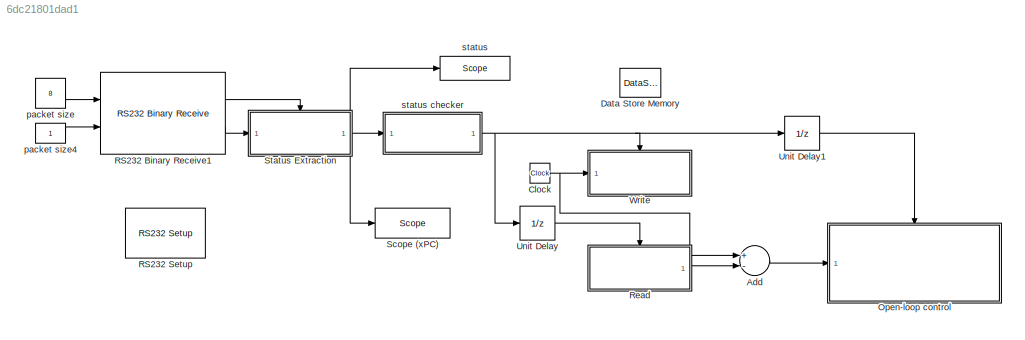
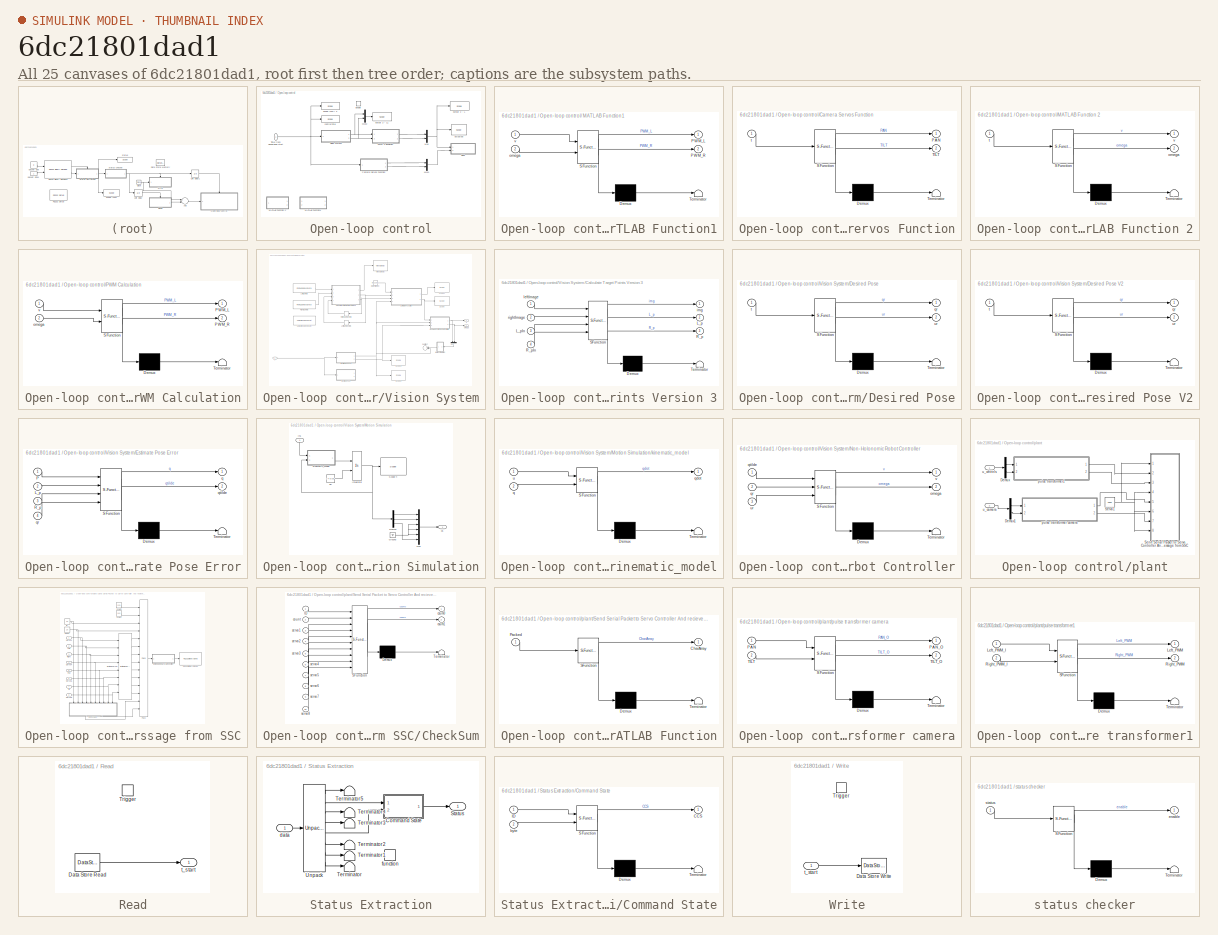
[diagram: thumbnail index - all 25 canvases of the model, root first then tree order]
MODEL slx_6dc21801dad1
KIND model
CONFIG AbsTol = auto
CONFIG FixedStep = 1/7.5
CONFIG MaxStep = auto
CONFIG MinStep = auto
CONFIG RelTol = 1e-3
CONFIG SampleTimeConstraint = Unconstrained
CONFIG Solver = ode3
CONFIG SolverMode = Auto
CONFIG SolverName = ode3
CONFIG StartTime = 0.0
CONFIG StopTime = inf
BLOCK [Sum] Add
  InputSameDT = off
  Inputs = +-
  OutDataTypeStr = Inherit: Inherit via internal rule
  Ports = [2, 1]
  SaturateOnIntegerOverflow = off
BLOCK [Clock] Clock
BLOCK [DataStoreMemory] Data Store Memory
  DataStoreName = t_start
  ReadBeforeWriteMsg = warning
  WriteAfterReadMsg = warning
  WriteAfterWriteMsg = warning
BLOCK [SubSystem] Open-loop control
  Ports = [1, 0, 1]
  RequestExecContextInheritance = off
BLOCK [SubSystem] Open-loop control/ MATLAB Function1
  Commented = on
  ErrorFcn = Stateflow.Translate.translate
  PermitHierarchicalResolution = ExplicitOnly
  Ports = [2, 2]
  RequestExecContextInheritance = off
  SFBlockType = MATLAB Function
  TreatAsAtomicUnit = on
BLOCK [Demux] Open-loop control/ MATLAB Function1/ Demux 
  Outputs = 1
  Ports = [1, 1]
BLOCK [S-Function] Open-loop control/ MATLAB Function1/ SFunction 
  EnableBusSupport = on
  FunctionName = sf_sfun
  PortCounts = [2 3]
  Ports = [2, 3]
  Tag = Stateflow S-Function RobotControl1 4
BLOCK [Terminator] Open-loop control/ MATLAB Function1/ Terminator 
BLOCK [Outport] Open-loop control/ MATLAB Function1/PWM_L
  IconDisplay = Port number
BLOCK [Outport] Open-loop control/ MATLAB Function1/PWM_R
  IconDisplay = Port number
  Port = 2
BLOCK [Inport] Open-loop control/ MATLAB Function1/omega
  IconDisplay = Port number
  Port = 2
BLOCK [Inport] Open-loop control/ MATLAB Function1/v
  IconDisplay = Port number
BLOCK [SubSystem] Open-loop control/Camera Servos Function
  ErrorFcn = Stateflow.Translate.translate
  PermitHierarchicalResolution = ExplicitOnly
  Ports = [1, 2]
  RequestExecContextInheritance = off
  SFBlockType = MATLAB Function
  TreatAsAtomicUnit = on
BLOCK [Demux] Open-loop control/Camera Servos Function/ Demux 
  Outputs = 1
  Ports = [1, 1]
BLOCK [S-Function] Open-loop control/Camera Servos Function/ SFunction 
  EnableBusSupport = on
  FunctionName = sf_sfun
  PortCounts = [1 3]
  Ports = [1, 3]
  Tag = Stateflow S-Function RobotControl1 11
BLOCK [Terminator] Open-loop control/Camera Servos Function/ Terminator 
BLOCK [Outport] Open-loop control/Camera Servos Function/PAN
  IconDisplay = Port number
BLOCK [Outport] Open-loop control/Camera Servos Function/TILT
  IconDisplay = Port number
  Port = 2
BLOCK [Inport] Open-loop control/Camera Servos Function/t
  IconDisplay = Port number
BLOCK [EnablePort] Open-loop control/Enable
  Ports = []
  PropagateVarSize = During execution
BLOCK [SubSystem] Open-loop control/MATLAB Function 2
  Commented = on
  ErrorFcn = Stateflow.Translate.translate
  PermitHierarchicalResolution = ExplicitOnly
  Ports = [1, 2]
  RequestExecContextInheritance = off
  SFBlockType = MATLAB Function
  TreatAsAtomicUnit = on
BLOCK [Demux] Open-loop control/MATLAB Function 2/ Demux 
  Outputs = 1
  Ports = [1, 1]
BLOCK [S-Function] Open-loop control/MATLAB Function 2/ SFunction 
  EnableBusSupport = on
  FunctionName = sf_sfun
  PortCounts = [1 3]
  Ports = [1, 3]
  Tag = Stateflow S-Function RobotControl1 1
BLOCK [Terminator] Open-loop control/MATLAB Function 2/ Terminator 
BLOCK [Outport] Open-loop control/MATLAB Function 2/omega
  IconDisplay = Port number
  Port = 2
BLOCK [Inport] Open-loop control/MATLAB Function 2/t
  IconDisplay = Port number
BLOCK [Outport] Open-loop control/MATLAB Function 2/v
  IconDisplay = Port number
BLOCK [Mux] Open-loop control/Mux
  DisplayOption = bar
  Inputs = 2
  Ports = [2, 1]
BLOCK [Mux] Open-loop control/Mux1
  DisplayOption = bar
  Inputs = 2
  Ports = [2, 1]
BLOCK [Mux] Open-loop control/Mux2
  DisplayOption = bar
  Inputs = 2
  Ports = [2, 1]
BLOCK [SubSystem] Open-loop control/PWM Calculation
  ErrorFcn = Stateflow.Translate.translate
  PermitHierarchicalResolution = ExplicitOnly
  Ports = [2, 2]
  RequestExecContextInheritance = off
  SFBlockType = MATLAB Function
  TreatAsAtomicUnit = on
BLOCK [Demux] Open-loop control/PWM Calculation/ Demux 
  Outputs = 1
  Ports = [1, 1]
BLOCK [S-Function] Open-loop control/PWM Calculation/ SFunction 
  EnableBusSupport = on
  FunctionName = sf_sfun
  PortCounts = [2 3]
  Ports = [2, 3]
  Tag = Stateflow S-Function RobotControl1 10
BLOCK [Terminator] Open-loop control/PWM Calculation/ Terminator 
BLOCK [Outport] Open-loop control/PWM Calculation/PWM_L
  IconDisplay = Port number
BLOCK [Outport] Open-loop control/PWM Calculation/PWM_R
  IconDisplay = Port number
  Port = 2
BLOCK [Inport] Open-loop control/PWM Calculation/omega
  IconDisplay = Port number
  Port = 2
BLOCK [Inport] Open-loop control/PWM Calculation/v
  IconDisplay = Port number
BLOCK [Reference] Open-loop control/Scope (xPC) 2  REF=slrtlib/Displays and
Logging/Scope 
  Commented = on
  Ports = [1]
  SourceBlock = slrtlib/Displays and\nLogging/Scope
  SourceType = xpcscopeblock
  autorestart = off
  autostart = on
  dynamicfilemode = off
  filename = 1ctime01.dat
  formatstr = '%15.6f'
  grid = on
  interleave = 1
  maxwritefilesize = 512*1024^2
  mode = Commit
  noprepostsamples = 0
  nosamples = 3000
  scopeno = 1
  scopetype = File
  triggerlevel = 0.0
  triggermode = FreeRun
  triggersample = 0
  triggerscope = 1
  triggersignal = 1
  triggerslope = Either
  trigsignalfromport = off
  viewmode = Graphical redraw
  writesize = 512
  ylimits = [0,0]
BLOCK [Inport] Open-loop control/Time from closed-loop start
  IconDisplay = Port number
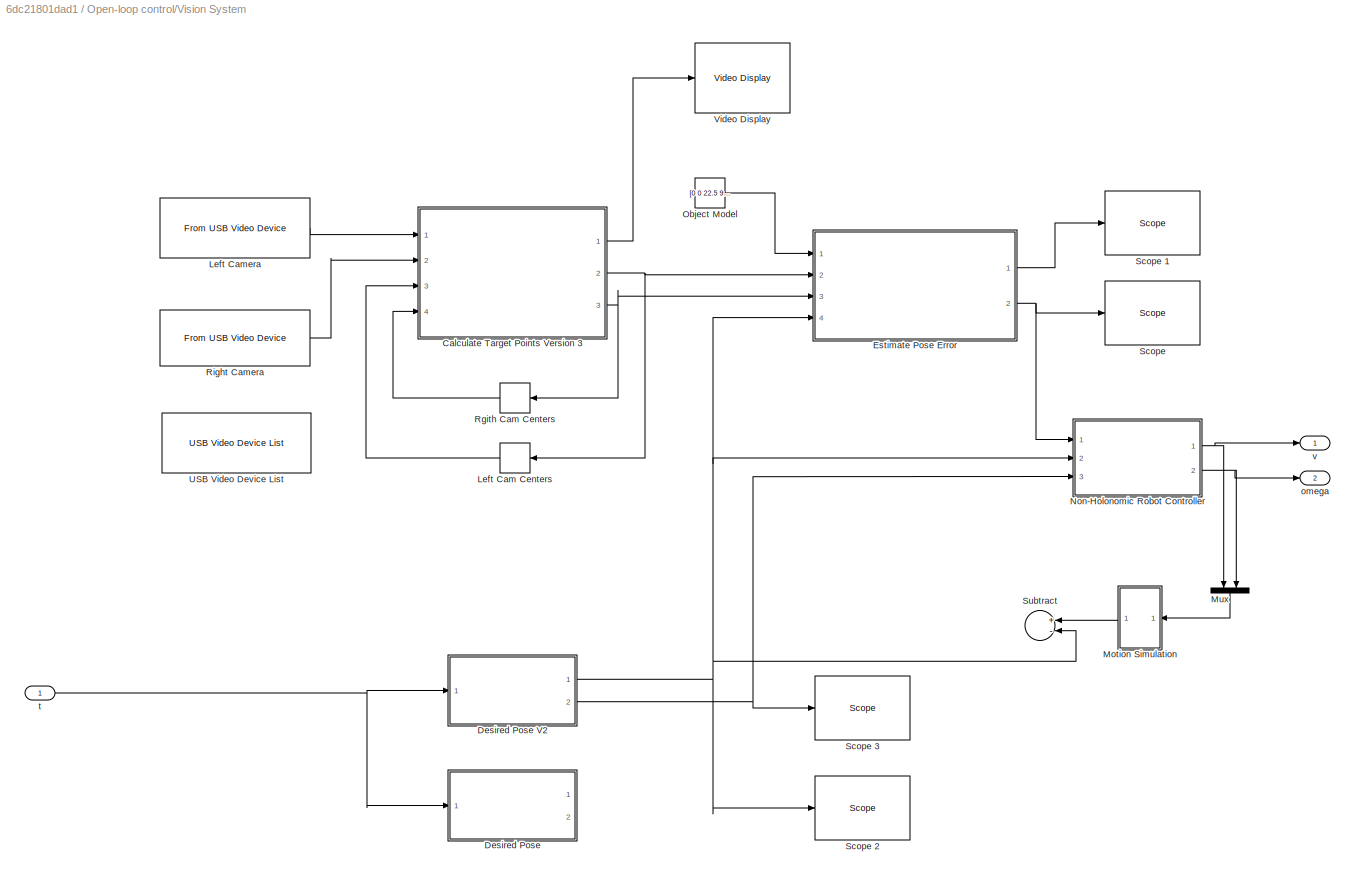
BLOCK [SubSystem] Open-loop control/Vision System
  Ports = [1, 2]
  RequestExecContextInheritance = off
BLOCK [SubSystem] Open-loop control/Vision System/Calculate Target Points Version 3
  ErrorFcn = Stateflow.Translate.translate
  PermitHierarchicalResolution = ExplicitOnly
  Ports = [4, 3]
  RequestExecContextInheritance = off
  SFBlockType = MATLAB Function
  TreatAsAtomicUnit = on
BLOCK [Demux] Open-loop control/Vision System/Calculate Target Points Version 3/ Demux 
  Outputs = 1
  Ports = [1, 1]
BLOCK [S-Function] Open-loop control/Vision System/Calculate Target Points Version 3/ SFunction 
  EnableBusSupport = on
  FunctionName = sf_sfun
  PortCounts = [4 4]
  Ports = [4, 4]
  Tag = Stateflow S-Function RobotControl1 6
BLOCK [Terminator] Open-loop control/Vision System/Calculate Target Points Version 3/ Terminator 
BLOCK [Outport] Open-loop control/Vision System/Calculate Target Points Version 3/L_p
  IconDisplay = Port number
  Port = 2
BLOCK [Inport] Open-loop control/Vision System/Calculate Target Points Version 3/L_pIn
  IconDisplay = Port number
  Port = 3
BLOCK [Outport] Open-loop control/Vision System/Calculate Target Points Version 3/R_p
  IconDisplay = Port number
  Port = 3
BLOCK [Inport] Open-loop control/Vision System/Calculate Target Points Version 3/R_pIn
  IconDisplay = Port number
  Port = 4
BLOCK [Outport] Open-loop control/Vision System/Calculate Target Points Version 3/img
  IconDisplay = Port number
BLOCK [Inport] Open-loop control/Vision System/Calculate Target Points Version 3/leftImage
  IconDisplay = Port number
BLOCK [Inport] Open-loop control/Vision System/Calculate Target Points Version 3/rightImage
  IconDisplay = Port number
  Port = 2
BLOCK [SubSystem] Open-loop control/Vision System/Desired Pose
  Commented = on
  ErrorFcn = Stateflow.Translate.translate
  PermitHierarchicalResolution = ExplicitOnly
  Ports = [1, 2]
  RequestExecContextInheritance = off
  SFBlockType = MATLAB Function
  TreatAsAtomicUnit = on
BLOCK [SubSystem] Open-loop control/Vision System/Desired Pose V2
  ErrorFcn = Stateflow.Translate.translate
  PermitHierarchicalResolution = ExplicitOnly
  Ports = [1, 2]
  RequestExecContextInheritance = off
  SFBlockType = MATLAB Function
  TreatAsAtomicUnit = on
BLOCK [Demux] Open-loop control/Vision System/Desired Pose V2/ Demux 
  Outputs = 1
  Ports = [1, 1]
BLOCK [S-Function] Open-loop control/Vision System/Desired Pose V2/ SFunction 
  EnableBusSupport = on
  FunctionName = sf_sfun
  PortCounts = [1 3]
  Ports = [1, 3]
  Tag = Stateflow S-Function RobotControl1 8
BLOCK [Terminator] Open-loop control/Vision System/Desired Pose V2/ Terminator 
BLOCK [Outport] Open-loop control/Vision System/Desired Pose V2/qr
  IconDisplay = Port number
BLOCK [Inport] Open-loop control/Vision System/Desired Pose V2/t
  IconDisplay = Port number
BLOCK [Outport] Open-loop control/Vision System/Desired Pose V2/ur
  IconDisplay = Port number
  Port = 2
BLOCK [Demux] Open-loop control/Vision System/Desired Pose/ Demux 
  Outputs = 1
  Ports = [1, 1]
BLOCK [S-Function] Open-loop control/Vision System/Desired Pose/ SFunction 
  EnableBusSupport = on
  FunctionName = sf_sfun
  PortCounts = [1 3]
  Ports = [1, 3]
  Tag = Stateflow S-Function RobotControl1 5
BLOCK [Terminator] Open-loop control/Vision System/Desired Pose/ Terminator 
BLOCK [Outport] Open-loop control/Vision System/Desired Pose/qr
  IconDisplay = Port number
BLOCK [Inport] Open-loop control/Vision System/Desired Pose/t
  IconDisplay = Port number
BLOCK [Outport] Open-loop control/Vision System/Desired Pose/ur
  IconDisplay = Port number
  Port = 2
BLOCK [SubSystem] Open-loop control/Vision System/Estimate Pose Error
  ErrorFcn = Stateflow.Translate.translate
  PermitHierarchicalResolution = ExplicitOnly
  Ports = [4, 2]
  RequestExecContextInheritance = off
  SFBlockType = MATLAB Function
  TreatAsAtomicUnit = on
BLOCK [Demux] Open-loop control/Vision System/Estimate Pose Error/ Demux 
  Outputs = 1
  Ports = [1, 1]
BLOCK [S-Function] Open-loop control/Vision System/Estimate Pose Error/ SFunction 
  EnableBusSupport = on
  FunctionName = sf_sfun
  PortCounts = [4 3]
  Ports = [4, 3]
  Tag = Stateflow S-Function RobotControl1 7
BLOCK [Terminator] Open-loop control/Vision System/Estimate Pose Error/ Terminator 
BLOCK [Inport] Open-loop control/Vision System/Estimate Pose Error/L_p
  IconDisplay = Port number
  Port = 2
BLOCK [Inport] Open-loop control/Vision System/Estimate Pose Error/P
  IconDisplay = Port number
BLOCK [Inport] Open-loop control/Vision System/Estimate Pose Error/R_p
  IconDisplay = Port number
  Port = 3
BLOCK [Outport] Open-loop control/Vision System/Estimate Pose Error/q
  IconDisplay = Port number
BLOCK [Inport] Open-loop control/Vision System/Estimate Pose Error/qr
  IconDisplay = Port number
  Port = 4
BLOCK [Outport] Open-loop control/Vision System/Estimate Pose Error/qtilde
  IconDisplay = Port number
  Port = 2
BLOCK [Memory] Open-loop control/Vision System/Left Cam Centers
  InheritSampleTime = on
  X0 = [648.8644  845.2955  739.9159  733.5896;\n  524.5901  515.6750  499.5366  358.6522]
BLOCK [Reference] Open-loop control/Vision System/Left Camera  REF=xpcvideousblib/From USB Video Device
  Ports = [0, 1]
  SourceBlock = xpcvideousblib/From USB Video Device
  SourceType = xpcvideousb
  cfmt = RGB24 (8:8:8)
  ffmt = Uncompressed
  fint = 1/7.5
  iheight = 960
  isig = One multidimensional signal
  iwidth = 1280
  paddr = 1.0
  sconf = <Select a configuration>
  status = off
  trigger = off
  updateBlock = 1
BLOCK [SubSystem] Open-loop control/Vision System/Motion Simulation
  Commented = on
  Ports = [1, 1]
  RequestExecContextInheritance = off
BLOCK [Demux] Open-loop control/Vision System/Motion Simulation/Demux
  DisplayOption = bar
  Outputs = 3
  Ports = [1, 3]
BLOCK [Ground] Open-loop control/Vision System/Motion Simulation/Ground
BLOCK [Inport] Open-loop control/Vision System/Motion Simulation/In1
  IconDisplay = Port number
BLOCK [Integrator] Open-loop control/Vision System/Motion Simulation/Integrator
  InitialConditionSource = external
  Ports = [2, 1]
BLOCK [Mux] Open-loop control/Vision System/Motion Simulation/Mux
  DisplayOption = bar
  Inputs = 6
  Ports = [6, 1]
BLOCK [Reference] Open-loop control/Vision System/Motion Simulation/Scope 4  REF=slrtlib/Displays and
Logging/Scope 
  Ports = [1]
  SourceBlock = slrtlib/Displays and\nLogging/Scope
  SourceType = xpcscopeblock
  autorestart = off
  autostart = on
  dynamicfilemode = off
  filename = data.dat
  formatstr = '%15.6f'
  grid = on
  interleave = 1
  maxwritefilesize = 512*1024^2
  mode = Lazy
  noprepostsamples = 0
  nosamples = 250
  scopeno = 30
  scopetype = File
  triggerlevel = 0.0
  triggermode = FreeRun
  triggersample = 0
  triggerscope = 1
  triggersignal = 1
  triggerslope = Either
  trigsignalfromport = off
  viewmode = Graphical rolling
  writesize = 512
  ylimits = [0,0]
BLOCK [SubSystem] Open-loop control/Vision System/Motion Simulation/kinematic_model
  ErrorFcn = Stateflow.Translate.translate
  PermitHierarchicalResolution = ExplicitOnly
  Ports = [2, 1]
  RequestExecContextInheritance = off
  SFBlockType = MATLAB Function
  TreatAsAtomicUnit = on
BLOCK [Demux] Open-loop control/Vision System/Motion Simulation/kinematic_model/ Demux 
  Outputs = 1
  Ports = [1, 1]
BLOCK [S-Function] Open-loop control/Vision System/Motion Simulation/kinematic_model/ SFunction 
  EnableBusSupport = on
  FunctionName = sf_sfun
  PortCounts = [2 2]
  Ports = [2, 2]
  Tag = Stateflow S-Function RobotControl1 9
BLOCK [Terminator] Open-loop control/Vision System/Motion Simulation/kinematic_model/ Terminator 
BLOCK [Inport] Open-loop control/Vision System/Motion Simulation/kinematic_model/q
  IconDisplay = Port number
  Port = 2
BLOCK [Outport] Open-loop control/Vision System/Motion Simulation/kinematic_model/qdot
  IconDisplay = Port number
BLOCK [Inport] Open-loop control/Vision System/Motion Simulation/kinematic_model/u
  IconDisplay = Port number
BLOCK [Constant] Open-loop control/Vision System/Motion Simulation/q0
  Value = [-4 0 0]'
BLOCK [Outport] Open-loop control/Vision System/Motion Simulation/qs
  IconDisplay = Port number
BLOCK [Mux] Open-loop control/Vision System/Mux
  Commented = on
  DisplayOption = bar
  Inputs = 2
  Ports = [2, 1]
BLOCK [SubSystem] Open-loop control/Vision System/Non-Holonomic Robot Controller
  ErrorFcn = Stateflow.Translate.translate
  PermitHierarchicalResolution = ExplicitOnly
  Ports = [3, 2]
  RequestExecContextInheritance = off
  SFBlockType = MATLAB Function
  TreatAsAtomicUnit = on
BLOCK [Demux] Open-loop control/Vision System/Non-Holonomic Robot Controller/ Demux 
  Outputs = 1
  Ports = [1, 1]
BLOCK [S-Function] Open-loop control/Vision System/Non-Holonomic Robot Controller/ SFunction 
  EnableBusSupport = on
  FunctionName = sf_sfun
  PortCounts = [3 3]
  Ports = [3, 3]
  Tag = Stateflow S-Function RobotControl1 2
BLOCK [Terminator] Open-loop control/Vision System/Non-Holonomic Robot Controller/ Terminator 
BLOCK [Outport] Open-loop control/Vision System/Non-Holonomic Robot Controller/omega
  IconDisplay = Port number
  Port = 2
BLOCK [Inport] Open-loop control/Vision System/Non-Holonomic Robot Controller/qr
  IconDisplay = Port number
  Port = 2
BLOCK [Inport] Open-loop control/Vision System/Non-Holonomic Robot Controller/qtilde
  IconDisplay = Port number
BLOCK [Inport] Open-loop control/Vision System/Non-Holonomic Robot Controller/ur
  IconDisplay = Port number
  Port = 3
BLOCK [Outport] Open-loop control/Vision System/Non-Holonomic Robot Controller/v
  IconDisplay = Port number
BLOCK [Constant] Open-loop control/Vision System/Object Model
  Value = [0 0 22.5 9; 12.75 -12.75 0 0; 2 1.75 2 22.5; 1 1 1 1]
BLOCK [Memory] Open-loop control/Vision System/Rgith Cam Centers
  InheritSampleTime = on
  X0 = [560.7818  756.9749  660.6839  646.1424;\n  602.0955  590.6171  575.2937  435.0033]
BLOCK [Reference] Open-loop control/Vision System/Right Camera  REF=xpcvideousblib/From USB Video Device
  Ports = [0, 1]
  SourceBlock = xpcvideousblib/From USB Video Device
  SourceType = xpcvideousb
  cfmt = RGB24 (8:8:8)
  ffmt = Uncompressed
  fint = 1/7.5
  iheight = 960
  isig = One multidimensional signal
  iwidth = 1280
  paddr = 1.3
  sconf = <Select a configuration>
  status = off
  trigger = off
  updateBlock = 1
BLOCK [Reference] Open-loop control/Vision System/Scope   REF=slrtlib/Displays and
Logging/Scope 
  Ports = [1]
  SourceBlock = slrtlib/Displays and\nLogging/Scope
  SourceType = xpcscopeblock
  autorestart = off
  autostart = on
  dynamicfilemode = off
  filename = data.dat
  formatstr = '%15.6f'
  grid = on
  interleave = 1
  maxwritefilesize = 512*1024^2
  mode = Lazy
  noprepostsamples = 0
  nosamples = 3
  scopeno = 3
  scopetype = Target
  triggerlevel = 0.0
  triggermode = FreeRun
  triggersample = 0
  triggerscope = 1
  triggersignal = 1
  triggerslope = Either
  trigsignalfromport = off
  viewmode = Numerical
  writesize = 512
  ylimits = [0,0]
BLOCK [Reference] Open-loop control/Vision System/Scope 1  REF=slrtlib/Displays and
Logging/Scope 
  Ports = [1]
  SourceBlock = slrtlib/Displays and\nLogging/Scope
  SourceType = xpcscopeblock
  autorestart = off
  autostart = on
  dynamicfilemode = off
  filename = q.dat
  formatstr = '%15.6f'
  grid = on
  interleave = 1
  maxwritefilesize = 512*1024^2
  mode = Lazy
  noprepostsamples = 0
  nosamples = 3
  scopeno = 1
  scopetype = Target
  triggerlevel = 0.0
  triggermode = FreeRun
  triggersample = 0
  triggerscope = 1
  triggersignal = 1
  triggerslope = Either
  trigsignalfromport = off
  viewmode = Numerical
  writesize = 512
  ylimits = [0,0]
BLOCK [Reference] Open-loop control/Vision System/Scope 2  REF=slrtlib/Displays and
Logging/Scope 
  Ports = [1]
  SourceBlock = slrtlib/Displays and\nLogging/Scope
  SourceType = xpcscopeblock
  autorestart = off
  autostart = on
  dynamicfilemode = off
  filename = data.dat
  formatstr = '%15.6f'
  grid = on
  interleave = 1
  maxwritefilesize = 512*1024^2
  mode = Lazy
  noprepostsamples = 0
  nosamples = 3
  scopeno = 2
  scopetype = Target
  triggerlevel = 0.0
  triggermode = FreeRun
  triggersample = 0
  triggerscope = 1
  triggersignal = 1
  triggerslope = Either
  trigsignalfromport = off
  viewmode = Numerical
  writesize = 512
  ylimits = [0,0]
BLOCK [Reference] Open-loop control/Vision System/Scope 3  REF=slrtlib/Displays and
Logging/Scope 
  Ports = [1]
  SourceBlock = slrtlib/Displays and\nLogging/Scope
  SourceType = xpcscopeblock
  autorestart = off
  autostart = on
  dynamicfilemode = off
  filename = data.dat
  formatstr = '%15.6f'
  grid = on
  interleave = 1
  maxwritefilesize = 512*1024^2
  mode = Lazy
  noprepostsamples = 0
  nosamples = 3
  scopeno = 9
  scopetype = Target
  triggerlevel = 0.0
  triggermode = FreeRun
  triggersample = 0
  triggerscope = 1
  triggersignal = 1
  triggerslope = Either
  trigsignalfromport = off
  viewmode = Numerical
  writesize = 512
  ylimits = [0,0]
BLOCK [Sum] Open-loop control/Vision System/Subtract
  Commented = on
  InputSameDT = off
  Inputs = +-
  OutDataTypeStr = Inherit: Inherit via internal rule
  Ports = [2, 1]
  SaturateOnIntegerOverflow = off
BLOCK [Reference] Open-loop control/Vision System/USB Video Device List  REF=xpcvideousblib/USB Video Device List
  Ports = []
  ShowInLibBrowser = 0
  SourceBlock = xpcvideousblib/USB Video Device List
  SourceType = xpcusbsearch
  UserDataPersistent = on
  usb_search = on
BLOCK [Reference] Open-loop control/Vision System/Video Display  REF=rtvideolib/Video Display
  Commented = on
  Ports = [1]
  SourceBlock = rtvideolib/Video Display
  SourceType = Simulink Real-Time Video Display
  colorspace = RGB
  imagesignal = Single multidimensional signal
  vindex = 1
BLOCK [Outport] Open-loop control/Vision System/omega
  IconDisplay = Port number
  Port = 2
BLOCK [Inport] Open-loop control/Vision System/t
  IconDisplay = Port number
BLOCK [Outport] Open-loop control/Vision System/v
  IconDisplay = Port number
BLOCK [Reference] Open-loop control/actual out  REF=slrtlib/Displays and
Logging/Scope 
  Commented = on
  Ports = [1]
  SourceBlock = slrtlib/Displays and\nLogging/Scope
  SourceType = xpcscopeblock
  autorestart = on
  autostart = on
  dynamicfilemode = off
  filename = 1pwm01.dat
  formatstr = '%15.6f'
  grid = on
  interleave = 1
  maxwritefilesize = 512*1024^2
  mode = Commit
  noprepostsamples = 0
  nosamples = 3000
  scopeno = 7
  scopetype = File
  triggerlevel = 0.0
  triggermode = FreeRun
  triggersample = 0
  triggerscope = 1
  triggersignal = 1
  triggerslope = Either
  trigsignalfromport = off
  viewmode = Graphical rolling
  writesize = 512
  ylimits = [-3,150]
BLOCK [Reference] Open-loop control/control time  REF=slrtlib/Displays and
Logging/Scope 
  Ports = [1]
  SourceBlock = slrtlib/Displays and\nLogging/Scope
  SourceType = xpcscopeblock
  autorestart = off
  autostart = on
  dynamicfilemode = off
  filename = data.dat
  formatstr = 't=%3.3f'
  grid = on
  interleave = 1
  maxwritefilesize = 512*1024^2
  mode = Lazy
  noprepostsamples = 0
  nosamples = 3
  scopeno = 15
  scopetype = Target
  triggerlevel = 0.0
  triggermode = FreeRun
  triggersample = 0
  triggerscope = 1
  triggersignal = 1
  triggerslope = Either
  trigsignalfromport = off
  viewmode = Numerical
  writesize = 512
  ylimits = [0,0]
BLOCK [Reference] Open-loop control/output 2 - L  REF=slrtlib/Displays and
Logging/Scope 
  Ports = [1]
  SourceBlock = slrtlib/Displays and\nLogging/Scope
  SourceType = xpcscopeblock
  autorestart = off
  autostart = on
  dynamicfilemode = off
  filename = data.dat
  formatstr = '%15.6f'
  grid = on
  interleave = 1
  maxwritefilesize = 512*1024^2
  mode = Lazy
  noprepostsamples = 0
  nosamples = 3
  scopeno = 11
  scopetype = Target
  triggerlevel = 0.0
  triggermode = FreeRun
  triggersample = 0
  triggerscope = 1
  triggersignal = 1
  triggerslope = Either
  trigsignalfromport = off
  viewmode = Numerical
  writesize = 512
  ylimits = [0,0]
BLOCK [Reference] Open-loop control/output 2 - L1  REF=slrtlib/Displays and
Logging/Scope 
  Ports = [1]
  SourceBlock = slrtlib/Displays and\nLogging/Scope
  SourceType = xpcscopeblock
  autorestart = off
  autostart = on
  dynamicfilemode = off
  filename = data.dat
  formatstr = '%15.6f'
  grid = on
  interleave = 1
  maxwritefilesize = 512*1024^2
  mode = Lazy
  noprepostsamples = 0
  nosamples = 3
  scopeno = 10
  scopetype = Target
  triggerlevel = 0.0
  triggermode = FreeRun
  triggersample = 0
  triggerscope = 1
  triggersignal = 1
  triggerslope = Either
  trigsignalfromport = off
  viewmode = Numerical
  writesize = 512
  ylimits = [0,0]
BLOCK [SubSystem] Open-loop control/plant
  Ports = [2]
  RequestExecContextInheritance = off
BLOCK [Demux] Open-loop control/plant/Demux
  DisplayOption = bar
  Outputs = 2
  Ports = [1, 2]
BLOCK [Demux] Open-loop control/plant/Demux1
  DisplayOption = bar
  Outputs = 2
  Ports = [1, 2]
BLOCK [SubSystem] Open-loop control/plant/Send Serial Packet to Servo Controller And recieve status message from SSC
  Ports = [8]
  RequestExecContextInheritance = off
  TreatAsAtomicUnit = on
BLOCK [Reference] Open-loop control/plant/Send Serial Packet to Servo Controller And recieve status message from SSC/Byte Reversal  REF=xpcutilitieslib/Byte Reversal 
  Ports = [8, 8]
  SourceBlock = xpcutilitieslib/Byte Reversal
  SourceType = xpcreverseendian
  numInp = 8
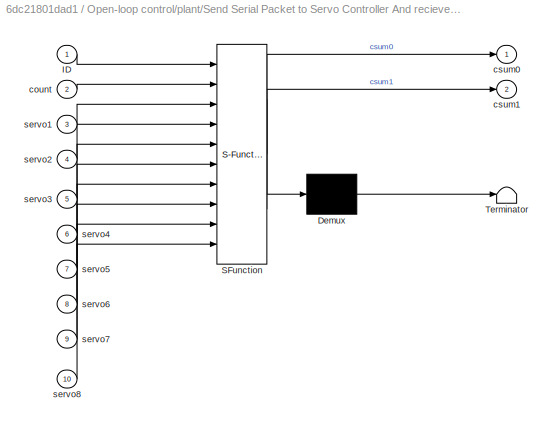
BLOCK [SubSystem] Open-loop control/plant/Send Serial Packet to Servo Controller And recieve status message from SSC/CheckSum
  ErrorFcn = Stateflow.Translate.translate
  PermitHierarchicalResolution = ExplicitOnly
  Ports = [10, 2]
  RequestExecContextInheritance = off
  SFBlockType = MATLAB Function
  TreatAsAtomicUnit = on
BLOCK [Demux] Open-loop control/plant/Send Serial Packet to Servo Controller And recieve status message from SSC/CheckSum/ Demux 
  Outputs = 1
  Ports = [1, 1]
BLOCK [S-Function] Open-loop control/plant/Send Serial Packet to Servo Controller And recieve status message from SSC/CheckSum/ SFunction 
  EnableBusSupport = on
  FunctionName = sf_sfun
  PortCounts = [10 3]
  Ports = [10, 3]
  Tag = Stateflow S-Function RobotControl1 3
BLOCK [Terminator] Open-loop control/plant/Send Serial Packet to Servo Controller And recieve status message from SSC/CheckSum/ Terminator 
BLOCK [Inport] Open-loop control/plant/Send Serial Packet to Servo Controller And recieve status message from SSC/CheckSum/ID
  IconDisplay = Port number
BLOCK [Inport] Open-loop control/plant/Send Serial Packet to Servo Controller And recieve status message from SSC/CheckSum/count
  IconDisplay = Port number
  Port = 2
BLOCK [Outport] Open-loop control/plant/Send Serial Packet to Servo Controller And recieve status message from SSC/CheckSum/csum0
  IconDisplay = Port number
BLOCK [Outport] Open-loop control/plant/Send Serial Packet to Servo Controller And recieve status message from SSC/CheckSum/csum1
  IconDisplay = Port number
  Port = 2
BLOCK [Inport] Open-loop control/plant/Send Serial Packet to Servo Controller And recieve status message from SSC/CheckSum/servo1
  IconDisplay = Port number
  Port = 3
BLOCK [Inport] Open-loop control/plant/Send Serial Packet to Servo Controller And recieve status message from SSC/CheckSum/servo2
  IconDisplay = Port number
  Port = 4
BLOCK [Inport] Open-loop control/plant/Send Serial Packet to Servo Controller And recieve status message from SSC/CheckSum/servo3
  IconDisplay = Port number
  Port = 5
BLOCK [Inport] Open-loop control/plant/Send Serial Packet to Servo Controller And recieve status message from SSC/CheckSum/servo4
  IconDisplay = Port number
  Port = 6
BLOCK [Inport] Open-loop control/plant/Send Serial Packet to Servo Controller And recieve status message from SSC/CheckSum/servo5
  IconDisplay = Port number
  Port = 7
BLOCK [Inport] Open-loop control/plant/Send Serial Packet to Servo Controller And recieve status message from SSC/CheckSum/servo6
  IconDisplay = Port number
  Port = 8
BLOCK [Inport] Open-loop control/plant/Send Serial Packet to Servo Controller And recieve status message from SSC/CheckSum/servo7
  IconDisplay = Port number
  Port = 9
BLOCK [Inport] Open-loop control/plant/Send Serial Packet to Servo Controller And recieve status message from SSC/CheckSum/servo8
  IconDisplay = Port number
  Port = 10
BLOCK [Constant] Open-loop control/plant/Send Serial Packet to Servo Controller And recieve status message from SSC/Count
  OutDataTypeStr = uint8
  Value = 16
BLOCK [SubSystem] Open-loop control/plant/Send Serial Packet to Servo Controller And recieve status message from SSC/Embedded MATLAB Function
  ErrorFcn = Stateflow.Translate.translate
  PermitHierarchicalResolution = ExplicitOnly
  Ports = [1, 1]
  RequestExecContextInheritance = off
  SFBlockType = MATLAB Function
  TreatAsAtomicUnit = on
BLOCK [Demux] Open-loop control/plant/Send Serial Packet to Servo Controller And recieve status message from SSC/Embedded MATLAB Function/ Demux 
  Outputs = 1
  Ports = [1, 1]
BLOCK [S-Function] Open-loop control/plant/Send Serial Packet to Servo Controller And recieve status message from SSC/Embedded MATLAB Function/ SFunction 
  EnableBusSupport = on
  FunctionName = sf_sfun
  PortCounts = [1 2]
  Ports = [1, 2]
  Tag = Stateflow S-Function RobotControl1 31
BLOCK [Terminator] Open-loop control/plant/Send Serial Packet to Servo Controller And recieve status message from SSC/Embedded MATLAB Function/ Terminator 
BLOCK [Outport] Open-loop control/plant/Send Serial Packet to Servo Controller And recieve status message from SSC/Embedded MATLAB Function/CharArray
  IconDisplay = Port number
BLOCK [Inport] Open-loop control/plant/Send Serial Packet to Servo Controller And recieve status message from SSC/Embedded MATLAB Function/Packed
  IconDisplay = Port number
BLOCK [Constant] Open-loop control/plant/Send Serial Packet to Servo Controller And recieve status message from SSC/ID
  OutDataTypeStr = uint8
  Value = 20
BLOCK [Inport] Open-loop control/plant/Send Serial Packet to Servo Controller And recieve status message from SSC/Left
  IconDisplay = Port number
  OutDataTypeStr = uint16
  Port = 2
BLOCK [Reference] Open-loop control/plant/Send Serial Packet to Servo Controller And recieve status message from SSC/Pack  REF=xpcobsoletelib/Utilities/Pack 
  Ports = [14, 1]
  SourceBlock = xpcobsoletelib/Utilities/Pack
  SourceType = xpcany2byte
  byteAlign = 1
  datatypes = {'uint8','uint8','uint8','uint8','uint16','uint16','uint16','uint16','uint16','uint16','uint16','uint16','uint8','uint8'}
BLOCK [Inport] Open-loop control/plant/Send Serial Packet to Servo Controller And recieve status message from SSC/Pan
  IconDisplay = Port number
  OutDataTypeStr = uint16
  Port = 5
BLOCK [Reference] Open-loop control/plant/Send Serial Packet to Servo Controller And recieve status message from SSC/RS232 Binary Send1  REF=AAxpcseriallibold/Obsolete/Binary
Mode/RS232
Binary Send
  Ports = [1]
  SourceBlock = AAxpcseriallibold/Obsolete/Binary\nMode/RS232\nBinary Send
  SourceType = rs232bsend
  port = COM1
  samptime = -1
  width = 22
BLOCK [Inport] Open-loop control/plant/Send Serial Packet to Servo Controller And recieve status message from SSC/Right
  IconDisplay = Port number
  OutDataTypeStr = uint16
  Port = 3
BLOCK [Constant] Open-loop control/plant/Send Serial Packet to Servo Controller And recieve status message from SSC/SYNC 0
  OutDataTypeStr = uint8
  Value = 129
BLOCK [Constant] Open-loop control/plant/Send Serial Packet to Servo Controller And recieve status message from SSC/SYNC 1
  OutDataTypeStr = uint8
  Value = 161
BLOCK [Inport] Open-loop control/plant/Send Serial Packet to Servo Controller And recieve status message from SSC/Servo1
  IconDisplay = Port number
  OutDataTypeStr = uint16
BLOCK [Inport] Open-loop control/plant/Send Serial Packet to Servo Controller And recieve status message from SSC/Servo4
  IconDisplay = Port number
  OutDataTypeStr = uint16
  Port = 4
BLOCK [Inport] Open-loop control/plant/Send Serial Packet to Servo Controller And recieve status message from SSC/Servo6
  IconDisplay = Port number
  OutDataTypeStr = uint16
  Port = 6
BLOCK [Inport] Open-loop control/plant/Send Serial Packet to Servo Controller And recieve status message from SSC/Servo8
  IconDisplay = Port number
  OutDataTypeStr = uint16
  Port = 8
BLOCK [Inport] Open-loop control/plant/Send Serial Packet to Servo Controller And recieve status message from SSC/Tilt
  IconDisplay = Port number
  OutDataTypeStr = uint16
  Port = 7
BLOCK [Constant] Open-loop control/plant/Servo1
  OutDataTypeStr = uint16
  Value = 1500
BLOCK [SubSystem] Open-loop control/plant/pulse transformer camera
  ErrorFcn = Stateflow.Translate.translate
  PermitHierarchicalResolution = ExplicitOnly
  Ports = [2, 2]
  RequestExecContextInheritance = off
  SFBlockType = MATLAB Function
  TreatAsAtomicUnit = on
BLOCK [Demux] Open-loop control/plant/pulse transformer camera/ Demux 
  Outputs = 1
  Ports = [1, 1]
BLOCK [S-Function] Open-loop control/plant/pulse transformer camera/ SFunction 
  EnableBusSupport = on
  FunctionName = sf_sfun
  PortCounts = [2 3]
  Ports = [2, 3]
  Tag = Stateflow S-Function RobotControl1 12
BLOCK [Terminator] Open-loop control/plant/pulse transformer camera/ Terminator 
BLOCK [Inport] Open-loop control/plant/pulse transformer camera/PAN
  IconDisplay = Port number
BLOCK [Outport] Open-loop control/plant/pulse transformer camera/PAN_O
  IconDisplay = Port number
BLOCK [Inport] Open-loop control/plant/pulse transformer camera/TILT
  IconDisplay = Port number
  Port = 2
BLOCK [Outport] Open-loop control/plant/pulse transformer camera/TILT_O
  IconDisplay = Port number
  Port = 2
BLOCK [SubSystem] Open-loop control/plant/pulse transformer1
  ErrorFcn = Stateflow.Translate.translate
  PermitHierarchicalResolution = ExplicitOnly
  Ports = [2, 2]
  RequestExecContextInheritance = off
  SFBlockType = MATLAB Function
  TreatAsAtomicUnit = on
BLOCK [Demux] Open-loop control/plant/pulse transformer1/ Demux 
  Outputs = 1
  Ports = [1, 1]
BLOCK [S-Function] Open-loop control/plant/pulse transformer1/ SFunction 
  EnableBusSupport = on
  FunctionName = sf_sfun
  PortCounts = [2 3]
  Ports = [2, 3]
  Tag = Stateflow S-Function RobotControl1 15
BLOCK [Terminator] Open-loop control/plant/pulse transformer1/ Terminator 
BLOCK [Outport] Open-loop control/plant/pulse transformer1/Left_PWM
  IconDisplay = Port number
BLOCK [Inport] Open-loop control/plant/pulse transformer1/Left_PWM_I
  IconDisplay = Port number
BLOCK [Outport] Open-loop control/plant/pulse transformer1/Right_PWM
  IconDisplay = Port number
  Port = 2
BLOCK [Inport] Open-loop control/plant/pulse transformer1/Right_PWM_I
  IconDisplay = Port number
  Port = 2
BLOCK [Inport] Open-loop control/plant/u_camera
  IconDisplay = Port number
  Port = 2
BLOCK [Inport] Open-loop control/plant/u_wheels
  IconDisplay = Port number
BLOCK [Reference] RS232 Binary Receive1  REF=AAxpcseriallibold/Obsolete/Binary
Mode/RS232
Binary Receive
  Ports = [2, 2]
  SourceBlock = AAxpcseriallibold/Obsolete/Binary\nMode/RS232\nBinary Receive
  SourceType = rs232brec
  port = COM1
  samptime = -1
  width = 8
BLOCK [Reference] RS232 Setup   REF=AAxpcseriallibold/Obsolete/RS232 Setup 
  Ports = []
  SourceBlock = AAxpcseriallibold/Obsolete/RS232 Setup
  SourceType = rs232setup
  baud = 115200
  dbits = 8
  initstruct = []
  parity = None
  port = COM1
  prot = None
  rbuf = 2048
  sbits = 1
  sbuf = 2048
  termstruct = []
BLOCK [SubSystem] Read
  Ports = [0, 1, 0, 1]
  RequestExecContextInheritance = off
  TreatAsAtomicUnit = on
BLOCK [DataStoreRead] Read/Data Store Read
  DataStoreName = t_start
  Ports = [0, 1]
BLOCK [TriggerPort] Read/Trigger
  Ports = []
  StatesWhenEnabling = held
BLOCK [Outport] Read/t_start
  IconDisplay = Port number
BLOCK [Reference] Scope (xPC)   REF=slrtlib/Displays and
Logging/Scope 
  Ports = [1]
  SourceBlock = slrtlib/Displays and\nLogging/Scope
  SourceType = xpcscopeblock
  autorestart = off
  autostart = on
  dynamicfilemode = off
  filename = data.dat
  formatstr = 'status=%3.3f'
  grid = on
  interleave = 1
  maxwritefilesize = 512*1024^2
  mode = Lazy
  noprepostsamples = 0
  nosamples = 2000
  scopeno = 20
  scopetype = Target
  triggerlevel = 0.0
  triggermode = FreeRun
  triggersample = 0
  triggerscope = 1
  triggersignal = 1
  triggerslope = Either
  trigsignalfromport = off
  viewmode = Graphical rolling
  writesize = 512
  ylimits = [0,0]
BLOCK [SubSystem] Status Extraction
  Ports = [1, 1, 0, 1]
  RequestExecContextInheritance = off
  TreatAsAtomicUnit = on
BLOCK [SubSystem] Status Extraction/Command State
  ErrorFcn = Stateflow.Translate.translate
  PermitHierarchicalResolution = ExplicitOnly
  Ports = [2, 1]
  RequestExecContextInheritance = off
  SFBlockType = MATLAB Function
  TreatAsAtomicUnit = on
BLOCK [Demux] Status Extraction/Command State/ Demux 
  Outputs = 1
  Ports = [1, 1]
BLOCK [S-Function] Status Extraction/Command State/ SFunction 
  EnableBusSupport = on
  FunctionName = sf_sfun
  PortCounts = [2 2]
  Ports = [2, 2]
  Tag = Stateflow S-Function RobotControl1 29
BLOCK [Terminator] Status Extraction/Command State/ Terminator 
BLOCK [Outport] Status Extraction/Command State/CCS
  IconDisplay = Port number
BLOCK [Inport] Status Extraction/Command State/ID
  IconDisplay = Port number
BLOCK [Inport] Status Extraction/Command State/byte
  IconDisplay = Port number
  Port = 2
BLOCK [Outport] Status Extraction/Status
  IconDisplay = Port number
BLOCK [Terminator] Status Extraction/Terminator
BLOCK [Terminator] Status Extraction/Terminator1
BLOCK [Terminator] Status Extraction/Terminator2
BLOCK [Terminator] Status Extraction/Terminator3
BLOCK [Terminator] Status Extraction/Terminator4
BLOCK [Terminator] Status Extraction/Terminator5
BLOCK [Reference] Status Extraction/Unpack  REF=xpcobsoletelib/Utilities/Unpack 
  Ports = [1, 8]
  SourceBlock = xpcobsoletelib/Utilities/Unpack
  SourceType = xpcbyte2any
  byteAlign = 1
  datatypes = {'uint8','uint8','uint8','uint8','uint8','uint8','uint8','uint8'}
  dimensions = {1,1,1,1,1,1,1,1}
BLOCK [Inport] Status Extraction/data
  IconDisplay = Port number
BLOCK [TriggerPort] Status Extraction/function
  OutputDataType = int8
  Ports = []
  TriggerType = function-call
BLOCK [UnitDelay] Unit Delay
  SampleTime = -1
BLOCK [UnitDelay] Unit Delay1
  SampleTime = -1
BLOCK [SubSystem] Write
  Ports = [1, 0, 0, 1]
  RequestExecContextInheritance = off
  TreatAsAtomicUnit = on
BLOCK [DataStoreWrite] Write/Data Store Write
  DataStoreName = t_start
  Ports = [1]
BLOCK [TriggerPort] Write/Trigger
  Ports = []
  StatesWhenEnabling = held
BLOCK [Inport] Write/t_start
  IconDisplay = Port number
BLOCK [Constant] packet size
  Value = 8
BLOCK [Constant] packet size4
BLOCK [Reference] status  REF=slrtlib/Displays and
Logging/Scope 
  Ports = [1]
  SourceBlock = slrtlib/Displays and\nLogging/Scope
  SourceType = xpcscopeblock
  autorestart = on
  autostart = on
  dynamicfilemode = off
  filename = 1sttus01.dat
  formatstr = '%15.6f'
  grid = on
  interleave = 1
  maxwritefilesize = 512*1024^2
  mode = Commit
  noprepostsamples = 0
  nosamples = 3000
  scopeno = 6
  scopetype = File
  triggerlevel = 0.0
  triggermode = FreeRun
  triggersample = 0
  triggerscope = 1
  triggersignal = 1
  triggerslope = Either
  trigsignalfromport = off
  viewmode = Graphical rolling
  writesize = 512
  ylimits = [-10,50]
BLOCK [SubSystem] status checker
  ErrorFcn = Stateflow.Translate.translate
  PermitHierarchicalResolution = ExplicitOnly
  Ports = [1, 1]
  RequestExecContextInheritance = off
  SFBlockType = MATLAB Function
  TreatAsAtomicUnit = on
BLOCK [Demux] status checker/ Demux 
  Outputs = 1
  Ports = [1, 1]
BLOCK [S-Function] status checker/ SFunction 
  EnableBusSupport = on
  FunctionName = sf_sfun
  PortCounts = [1 2]
  Ports = [1, 2]
  Tag = Stateflow S-Function RobotControl1 30
BLOCK [Terminator] status checker/ Terminator 
BLOCK [Outport] status checker/enable
  IconDisplay = Port number
BLOCK [Inport] status checker/status
  IconDisplay = Port number
LINE Add:1 -> Open-loop control:1
NET Clock:1 -> Add:1, Write:1
LINE Open-loop control/Camera Servos Function:1 -> Open-loop control/Mux1:1
LINE Open-loop control/Camera Servos Function:2 -> Open-loop control/Mux1:2
LINE Open-loop control/Mux1:1 -> Open-loop control/plant:2
LINE Open-loop control/Mux2:1 -> Open-loop control/output 2 - L1:1
NET Open-loop control/Mux:1 -> Open-loop control/actual out:1, Open-loop control/output 2 - L:1, Open-loop control/plant:1
LINE Open-loop control/PWM Calculation:1 -> Open-loop control/Mux:1
LINE Open-loop control/PWM Calculation:2 -> Open-loop control/Mux:2
NET Open-loop control/Time from closed-loop start:1 -> Open-loop control/Camera Servos Function:1, Open-loop control/Scope (xPC) 2:1, Open-loop control/Vision System:1, Open-loop control/control time:1
LINE Open-loop control/Vision System/Calculate Target Points Version 3:1 -> Open-loop control/Vision System/Video Display:1
NET Open-loop control/Vision System/Calculate Target Points Version 3:2 -> Open-loop control/Vision System/Estimate Pose Error:2, Open-loop control/Vision System/Left Cam Centers:1
NET Open-loop control/Vision System/Calculate Target Points Version 3:3 -> Open-loop control/Vision System/Estimate Pose Error:3, Open-loop control/Vision System/Rgith Cam Centers:1
NET Open-loop control/Vision System/Desired Pose V2:1 -> Open-loop control/Vision System/Estimate Pose Error:4, Open-loop control/Vision System/Non-Holonomic Robot Controller:2, Open-loop control/Vision System/Scope 2:1, Open-loop control/Vision System/Subtract:2
NET Open-loop control/Vision System/Desired Pose V2:2 -> Open-loop control/Vision System/Non-Holonomic Robot Controller:3, Open-loop control/Vision System/Scope 3:1
LINE Open-loop control/Vision System/Estimate Pose Error:1 -> Open-loop control/Vision System/Scope 1:1
NET Open-loop control/Vision System/Estimate Pose Error:2 -> Open-loop control/Vision System/Non-Holonomic Robot Controller:1, Open-loop control/Vision System/Scope :1
LINE Open-loop control/Vision System/Left Cam Centers:1 -> Open-loop control/Vision System/Calculate Target Points Version 3:3
LINE Open-loop control/Vision System/Left Camera:1 -> Open-loop control/Vision System/Calculate Target Points Version 3:1
LINE Open-loop control/Vision System/Motion Simulation/Demux:1 -> Open-loop control/Vision System/Motion Simulation/Mux:1
LINE Open-loop control/Vision System/Motion Simulation/Demux:2 -> Open-loop control/Vision System/Motion Simulation/Mux:2
LINE Open-loop control/Vision System/Motion Simulation/Demux:3 -> Open-loop control/Vision System/Motion Simulation/Mux:6
NET Open-loop control/Vision System/Motion Simulation/Ground:1 -> Open-loop control/Vision System/Motion Simulation/Mux:3, Open-loop control/Vision System/Motion Simulation/Mux:4, Open-loop control/Vision System/Motion Simulation/Mux:5
LINE Open-loop control/Vision System/Motion Simulation/In1:1 -> Open-loop control/Vision System/Motion Simulation/kinematic_model:1
NET Open-loop control/Vision System/Motion Simulation/Integrator:1 -> Open-loop control/Vision System/Motion Simulation/Demux:1, Open-loop control/Vision System/Motion Simulation/Scope 4:1, Open-loop control/Vision System/Motion Simulation/kinematic_model:2
LINE Open-loop control/Vision System/Motion Simulation/Mux:1 -> Open-loop control/Vision System/Motion Simulation/qs:1
LINE Open-loop control/Vision System/Motion Simulation/kinematic_model:1 -> Open-loop control/Vision System/Motion Simulation/Integrator:1
LINE Open-loop control/Vision System/Motion Simulation/q0:1 -> Open-loop control/Vision System/Motion Simulation/Integrator:2
LINE Open-loop control/Vision System/Motion Simulation:1 -> Open-loop control/Vision System/Subtract:1
LINE Open-loop control/Vision System/Mux:1 -> Open-loop control/Vision System/Motion Simulation:1
NET Open-loop control/Vision System/Non-Holonomic Robot Controller:1 -> Open-loop control/Vision System/Mux:1, Open-loop control/Vision System/v:1
NET Open-loop control/Vision System/Non-Holonomic Robot Controller:2 -> Open-loop control/Vision System/Mux:2, Open-loop control/Vision System/omega:1
LINE Open-loop control/Vision System/Object Model:1 -> Open-loop control/Vision System/Estimate Pose Error:1
LINE Open-loop control/Vision System/Rgith Cam Centers:1 -> Open-loop control/Vision System/Calculate Target Points Version 3:4
LINE Open-loop control/Vision System/Right Camera:1 -> Open-loop control/Vision System/Calculate Target Points Version 3:2
NET Open-loop control/Vision System/t:1 -> Open-loop control/Vision System/Desired Pose V2:1, Open-loop control/Vision System/Desired Pose:1
NET Open-loop control/Vision System:1 -> Open-loop control/Mux2:1, Open-loop control/PWM Calculation:1
NET Open-loop control/Vision System:2 -> Open-loop control/Mux2:2, Open-loop control/PWM Calculation:2
LINE Open-loop control/plant/Demux1:1 -> Open-loop control/plant/pulse transformer camera:1
LINE Open-loop control/plant/Demux1:2 -> Open-loop control/plant/pulse transformer camera:2
LINE Open-loop control/plant/Demux:1 -> Open-loop control/plant/pulse transformer1:1
LINE Open-loop control/plant/Demux:2 -> Open-loop control/plant/pulse transformer1:2
LINE Open-loop control/plant/Send Serial Packet to Servo Controller And recieve status message from SSC/Byte Reversal:1 -> Open-loop control/plant/Send Serial Packet to Servo Controller And recieve status message from SSC/Pack:5
LINE Open-loop control/plant/Send Serial Packet to Servo Controller And recieve status message from SSC/Byte Reversal:2 -> Open-loop control/plant/Send Serial Packet to Servo Controller And recieve status message from SSC/Pack:6
LINE Open-loop control/plant/Send Serial Packet to Servo Controller And recieve status message from SSC/Byte Reversal:3 -> Open-loop control/plant/Send Serial Packet to Servo Controller And recieve status message from SSC/Pack:7
LINE Open-loop control/plant/Send Serial Packet to Servo Controller And recieve status message from SSC/Byte Reversal:4 -> Open-loop control/plant/Send Serial Packet to Servo Controller And recieve status message from SSC/Pack:8
LINE Open-loop control/plant/Send Serial Packet to Servo Controller And recieve status message from SSC/Byte Reversal:5 -> Open-loop control/plant/Send Serial Packet to Servo Controller And recieve status message from SSC/Pack:9
LINE Open-loop control/plant/Send Serial Packet to Servo Controller And recieve status message from SSC/Byte Reversal:6 -> Open-loop control/plant/Send Serial Packet to Servo Controller And recieve status message from SSC/Pack:10
LINE Open-loop control/plant/Send Serial Packet to Servo Controller And recieve status message from SSC/Byte Reversal:7 -> Open-loop control/plant/Send Serial Packet to Servo Controller And recieve status message from SSC/Pack:11
LINE Open-loop control/plant/Send Serial Packet to Servo Controller And recieve status message from SSC/Byte Reversal:8 -> Open-loop control/plant/Send Serial Packet to Servo Controller And recieve status message from SSC/Pack:12
LINE Open-loop control/plant/Send Serial Packet to Servo Controller And recieve status message from SSC/CheckSum:1 -> Open-loop control/plant/Send Serial Packet to Servo Controller And recieve status message from SSC/Pack:13
LINE Open-loop control/plant/Send Serial Packet to Servo Controller And recieve status message from SSC/CheckSum:2 -> Open-loop control/plant/Send Serial Packet to Servo Controller And recieve status message from SSC/Pack:14
NET Open-loop control/plant/Send Serial Packet to Servo Controller And recieve status message from SSC/Count:1 -> Open-loop control/plant/Send Serial Packet to Servo Controller And recieve status message from SSC/CheckSum:2, Open-loop control/plant/Send Serial Packet to Servo Controller And recieve status message from SSC/Pack:4
LINE Open-loop control/plant/Send Serial Packet to Servo Controller And recieve status message from SSC/Embedded MATLAB Function:1 -> Open-loop control/plant/Send Serial Packet to Servo Controller And recieve status message from SSC/RS232 Binary Send1:1
NET Open-loop control/plant/Send Serial Packet to Servo Controller And recieve status message from SSC/ID:1 -> Open-loop control/plant/Send Serial Packet to Servo Controller And recieve status message from SSC/CheckSum:1, Open-loop control/plant/Send Serial Packet to Servo Controller And recieve status message from SSC/Pack:3
NET Open-loop control/plant/Send Serial Packet to Servo Controller And recieve status message from SSC/Left:1 -> Open-loop control/plant/Send Serial Packet to Servo Controller And recieve status message from SSC/Byte Reversal:2, Open-loop control/plant/Send Serial Packet to Servo Controller And recieve status message from SSC/CheckSum:4
LINE Open-loop control/plant/Send Serial Packet to Servo Controller And recieve status message from SSC/Pack:1 -> Open-loop control/plant/Send Serial Packet to Servo Controller And recieve status message from SSC/Embedded MATLAB Function:1
NET Open-loop control/plant/Send Serial Packet to Servo Controller And recieve status message from SSC/Pan:1 -> Open-loop control/plant/Send Serial Packet to Servo Controller And recieve status message from SSC/Byte Reversal:5, Open-loop control/plant/Send Serial Packet to Servo Controller And recieve status message from SSC/CheckSum:7
NET Open-loop control/plant/Send Serial Packet to Servo Controller And recieve status message from SSC/Right:1 -> Open-loop control/plant/Send Serial Packet to Servo Controller And recieve status message from SSC/Byte Reversal:3, Open-loop control/plant/Send Serial Packet to Servo Controller And recieve status message from SSC/CheckSum:5
LINE Open-loop control/plant/Send Serial Packet to Servo Controller And recieve status message from SSC/SYNC 0:1 -> Open-loop control/plant/Send Serial Packet to Servo Controller And recieve status message from SSC/Pack:1
LINE Open-loop control/plant/Send Serial Packet to Servo Controller And recieve status message from SSC/SYNC 1:1 -> Open-loop control/plant/Send Serial Packet to Servo Controller And recieve status message from SSC/Pack:2
NET Open-loop control/plant/Send Serial Packet to Servo Controller And recieve status message from SSC/Servo1:1 -> Open-loop control/plant/Send Serial Packet to Servo Controller And recieve status message from SSC/Byte Reversal:1, Open-loop control/plant/Send Serial Packet to Servo Controller And recieve status message from SSC/CheckSum:3
NET Open-loop control/plant/Send Serial Packet to Servo Controller And recieve status message from SSC/Servo4:1 -> Open-loop control/plant/Send Serial Packet to Servo Controller And recieve status message from SSC/Byte Reversal:4, Open-loop control/plant/Send Serial Packet to Servo Controller And recieve status message from SSC/CheckSum:6
NET Open-loop control/plant/Send Serial Packet to Servo Controller And recieve status message from SSC/Servo6:1 -> Open-loop control/plant/Send Serial Packet to Servo Controller And recieve status message from SSC/Byte Reversal:6, Open-loop control/plant/Send Serial Packet to Servo Controller And recieve status message from SSC/CheckSum:8
NET Open-loop control/plant/Send Serial Packet to Servo Controller And recieve status message from SSC/Servo8:1 -> Open-loop control/plant/Send Serial Packet to Servo Controller And recieve status message from SSC/Byte Reversal:8, Open-loop control/plant/Send Serial Packet to Servo Controller And recieve status message from SSC/CheckSum:10
NET Open-loop control/plant/Send Serial Packet to Servo Controller And recieve status message from SSC/Tilt:1 -> Open-loop control/plant/Send Serial Packet to Servo Controller And recieve status message from SSC/Byte Reversal:7, Open-loop control/plant/Send Serial Packet to Servo Controller And recieve status message from SSC/CheckSum:9
NET Open-loop control/plant/Servo1:1 -> Open-loop control/plant/Send Serial Packet to Servo Controller And recieve status message from SSC:1, Open-loop control/plant/Send Serial Packet to Servo Controller And recieve status message from SSC:4, Open-loop control/plant/Send Serial Packet to Servo Controller And recieve status message from SSC:6, Open-loop control/plant/Send Serial Packet to Servo Controller And recieve status message from SSC:8
LINE Open-loop control/plant/pulse transformer camera:1 -> Open-loop control/plant/Send Serial Packet to Servo Controller And recieve status message from SSC:5
LINE Open-loop control/plant/pulse transformer camera:2 -> Open-loop control/plant/Send Serial Packet to Servo Controller And recieve status message from SSC:7
LINE Open-loop control/plant/pulse transformer1:1 -> Open-loop control/plant/Send Serial Packet to Servo Controller And recieve status message from SSC:2
LINE Open-loop control/plant/pulse transformer1:2 -> Open-loop control/plant/Send Serial Packet to Servo Controller And recieve status message from SSC:3
LINE Open-loop control/plant/u_camera:1 -> Open-loop control/plant/Demux1:1
LINE Open-loop control/plant/u_wheels:1 -> Open-loop control/plant/Demux:1
LINE RS232 Binary Receive1:1 -> Status Extraction:trigger
LINE RS232 Binary Receive1:2 -> Status Extraction:1
LINE Read/Data Store Read:1 -> Read/t_start:1
LINE Read:1 -> Add:2
LINE Status Extraction/Command State:1 -> Status Extraction/Status:1
LINE Status Extraction/Unpack:1 -> Status Extraction/Terminator5:1
LINE Status Extraction/Unpack:2 -> Status Extraction/Command State:1
LINE Status Extraction/Unpack:3 -> Status Extraction/Terminator4:1
LINE Status Extraction/Unpack:4 -> Status Extraction/Terminator3:1
LINE Status Extraction/Unpack:5 -> Status Extraction/Command State:2
LINE Status Extraction/Unpack:6 -> Status Extraction/Terminator2:1
LINE Status Extraction/Unpack:7 -> Status Extraction/Terminator1:1
LINE Status Extraction/Unpack:8 -> Status Extraction/Terminator:1
LINE Status Extraction/data:1 -> Status Extraction/Unpack:1
NET Status Extraction:1 -> Scope (xPC) :1, status checker:1, status:1
LINE Unit Delay1:1 -> Open-loop control:enable
LINE Unit Delay:1 -> Read:trigger
LINE Write/t_start:1 -> Write/Data Store Write:1
LINE packet size4:1 -> RS232 Binary Receive1:2
LINE packet size:1 -> RS232 Binary Receive1:1
NET status checker:1 -> Unit Delay1:1, Unit Delay:1, Write:trigger
note: NET lines group one-source signal fan-out (src -> all destinations, sorted); 1:1 wires keep LINE
CHART Open-loop control/MATLAB Function 2 states=1 transitions=1
  STATE_LABEL 'eML_blk_kernel()'
  STATE_LABEL 'SCRIPT:\nfunction [v,omega] = fcn(t)\n%#codegen\n\ntau = 10;\n\nv0 = 0.9;\nomega0 = 0.5;\n\ntshift = 1;\n\nv = v0*sin(2*pi*t/tau);\nomega = omega0*sin(2*pi*(t-tshift)/tau);'
CHART Open-loop control/Vision System/Non-Holonomic Robot Controller states=1 transitions=1
  STATE_LABEL 'eML_blk_kernel()'
  STATE_LABEL 'SCRIPT:\nfunction [v, omega] = controller(qtilde,qr,ur)\n% the controller\n% u = [v omega]^T\n% qtilde: posture error\n% qr    : reference (desired) posture\n\n%%----------Input Parametleri Duzenleniyor---------------------------------\n\nu = zeros(2,1);\n\n% for now\nvr     = ur(1,1);\nomegar = ur(2,1);\n\n% According to the vision system: qtilde = q - qr, so\nq = qtilde + qr;\n\nxr     = qr(1,1);\nyr     = qr(2,1)...<+1108ch>'
CHART Open-loop control/plant/Send Serial Packet to Servo Controller
And recieve status message from SSC/CheckSum states=1 transitions=1
  STATE_LABEL 'eML_blk_kernel()'
  STATE_LABEL 'SCRIPT:\nfunction [csum0,csum1]= fcn(ID,count,servo1,servo2,servo3,servo4,servo5,servo6,servo7,servo8)\n% The purpose of this function is to calculate the fletcher checksum values\n% as defined in internet RFC 1145\n% See page 11 of the Microbotics Servo Switch/Controller Users Manual for \n% more information\n\n% break into bytes\nservo1a=uint8(bitshift(servo1,-8)); servo1b=uint8(servo1-uint16(servo1a)*2...<+924ch>'
CHART Open-loop control/
MATLAB Function1 states=1 transitions=1
  STATE_LABEL 'eML_blk_kernel()'
  STATE_LABEL 'SCRIPT:\nfunction [PWM_L,PWM_R] = fcn(v,omega)\n%#codegen\nv = -v;\nomega = -omega;\n\nT = 0.422;\n\nvL = v -(T/2)*omega;\nvR = v +(T/2)*omega;\n\nvVec = [vL;vR];\n\naL = 3.8863614532;\nbL = -0.0026808274;\n\naR = 3.2707294485;\nbR = -0.0022447804;\n\nA = [aL;aR];\nB = [[bL,0];[0,bR]];\n\nPWM = (B)\\(vVec-A);\n\nPWM_L = 1350;%PWM(1);\nPWM_R = 1350;%PWM(2);'
CHART Open-loop control/Vision System/Desired Pose states=1 transitions=1
  STATE_LABEL 'eML_blk_kernel()'
  STATE_LABEL 'SCRIPT:\nfunction [qr,ur] = desired(t)\n%#codegen\n\nxr = -2.475;%vx*t - 30;\nyr = 0; %A*sin(2*pi*xr/xL) + 2;\nzr = 0.25;\nphir = 0;\nthetar = 0;\n\n% desired x and y derivatives\nxrdot = 0; %vx;\nyrdot = 0; %A*(2*pi/xL)*cos(2*pi*xr/xL);\n\n% desired theta\npsir = atan2(yrdot,xrdot);\n\n% desired second derivatives\nxrddot = 0;\nyrddot = 0;%-A*(2*pi/xL)^2*sin(2*pi*xr/xL);\n\n% desired theta derivative\nthetardot = 0;%(...<+161ch>'
CHART Open-loop control/Vision System/Calculate Target Points Version 3 states=1 transitions=1
  STATE_LABEL 'eML_blk_kernel()'
  STATE_LABEL "SCRIPT:\nfunction [img,L_p, R_p] = getCenterV3(leftImage, rightImage, L_pIn, R_pIn)\n    %#codegen \n    ps = 0; %Pad Size\n%     leftImage = padarray(leftImage,[ps ps],'both');\n%     rightImage = padarray(rightImage,[ps ps],'both');\n    \n    lwc = round(L_pIn) + ps; %Center of the left windows\n    rwc = round(R_pIn) + ps; %Center of the right windows\n    \n    L_p = zeros(2,4);\n    R_p = zeros(2,4);\n ...<+1664ch>"
CHART Open-loop control/Vision System/Estimate Pose Error states=1 transitions=1
  STATE_LABEL 'eML_blk_kernel()'
  STATE_LABEL 'SCRIPT:\nfunction [q, qtilde] = mirage(P,L_p,R_p,qr)\n%#codegen\n\n%Desired Robot Pose for current step qr()\nrobotPoseDes.x = qr(1);\nrobotPoseDes.y = qr(2);\nrobotPoseDes.z = qr(3);\nrobotPoseDes.phi = qr(4);\nrobotPoseDes.theta = qr(5);\nrobotPoseDes.psi = qr(6);\n\n%Transform target points from I space into Desired Robot Space\nworld2robotDes = inv(EulerTrans(robotPoseDes));\nS_PDes = world2robotDes*P;\n\n%Ca...<+693ch>'
CHART Open-loop control/Vision System/Desired Pose V2 states=1 transitions=1
  STATE_LABEL 'eML_blk_kernel()'
  STATE_LABEL 'SCRIPT:\nfunction [qr, ur] = desired(t)\n%#codegen\n\n    x0 = 1.87;\n    xc = 0.95;\n    T = 12;\n    \n%     if(t > 12)\n%         t = 12;\n%     end\n\n    t = 0;\n    \n    %Position/Time\n    xr = -(x0+xc)/2 - (x0-xc)/2*cos(2*pi*t/T);\n    yr = 0;\n    zr = 0.25;\n    phir = 0;\n    thetar = 0;\n     \n    xrdot = (61*pi*sin((pi*t)/6))/240;\n    yrdot = 0;\n    \n    psir = atan2(yrdot,xrdot);\n    \n    % desired sec...<+369ch>'
CHART Open-loop control/Vision System/Motion Simulation/kinematic_model states=1 transitions=1
  STATE_LABEL 'eML_blk_kernel()'
  STATE_LABEL 'SCRIPT:\nfunction qdot = kinematic(u,q)\n% Kinematic Model\n\n% q = [x y theta]^T\n% qdot = [xdot ydot thetadot]^T\n% u = [v omega]^T\n\nqdot = zeros(3,1);\n\ntheta = q(3);\nqdot = [cos(theta),0;sin(theta),0;0,1]*u; % Eq.(2)\n'
CHART Open-loop control/PWM Calculation states=1 transitions=1
  STATE_LABEL 'eML_blk_kernel()'
  STATE_LABEL 'SCRIPT:\nfunction [PWM_L, PWM_R] = PWM(v, omega)\n%#codegen\n\nT = 0.422;\n\nvL = v -(T/2)*omega;\nvR = v +(T/2)*omega;\n\n%----------------------------------\n%Calculations for left wheel motor\nif(vL < -1.64)\n    PWM_L = 1000;\n    \nelseif(vL < 0)\n    %function for the negative area\n    PWM_L = 97.06*vL^3 + 332.9*vL^2 + 525.5*vL + 1395;\n    \nelseif(vL < 1.73)\n    %function for the positive area\n    PWM_L = ...<+442ch>'
CHART Open-loop control/Camera Servos Function states=1 transitions=1
  STATE_LABEL 'eML_blk_kernel()'
  STATE_LABEL 'SCRIPT:\n function [PAN,TILT] = fcn(t)\n%Insert Function for camera servo manipulation here\n%By default, this function holds camera servos at their center position (1500 ms)\nPAN = 1525;\nTILT = 1400;'
CHART Open-loop control/plant/pulse transformer camera states=1 transitions=1
  STATE_LABEL 'eML_blk_kernel()'
  STATE_LABEL 'SCRIPT:\nfunction [PAN_O, TILT_O]  = fcn(PAN,TILT)\n\nPAN_O  = uint16(PAN);\nTILT_O = uint16(TILT);\n'
CHART Open-loop control/plant/pulse transformer1 states=1 transitions=1
  STATE_LABEL 'eML_blk_kernel()'
  STATE_LABEL 'SCRIPT:\nfunction [Left_PWM, Right_PWM]  = fcn(Left_PWM_I,Right_PWM_I)\n% This block supports an embeddable subset of the MATLAB language.\n% Converts output angle and speed value into a pulse width\n% The input angle is between +pi/4 and -pi/4  (from limits)\n% The speed is between 140 and 0 rps(Hz)\n\n% angle=uint16(angI*16.25*180/pi + 1505.5);\n% pw=-0.0002*speedI^3 +0.03*speedI^2 -2.66*speedI +1528;\n%...<+91ch>'
CHART Status Extraction/Command State states=1 transitions=1
  STATE_LABEL 'eML_blk_kernel()'
  STATE_LABEL 'SCRIPT:\nfunction CCS = fcn(ID, byte)\n% This block supports an embeddable subset of the MATLAB language.\n% See the help menu for details. \n% outputs the command channel state (CCS) given status output\n\n% first check that have proper status message\n% ID = 10 for SSC status info\nif ID==10\n    if byte==2\n        out=1;\n    elseif byte==4;\n        out=2;\n    elseif byte==6\n        out=3;\n    else\n     ...<+48ch>'
CHART status checker states=1 transitions=1
  STATE_LABEL 'eML_blk_kernel()'
  STATE_LABEL 'SCRIPT:\nfunction enable = fcn(status)\n% This block supports an embeddable subset of the MATLAB language.\n% See the help menu for details. \nif status==1  \n    en = 1;\nelse\n    en = -1;\nend\nenable=en;'
CHART Open-loop control/plant/Send Serial Packet to Servo Controller
And recieve status message from SSC/Embedded
MATLAB Function states=1 transitions=1
  STATE_LABEL 'eML_blk_kernel()'
  STATE_LABEL "SCRIPT:\nfunction CharArray = fcn(Packed)\n%\nCharArray = zeros(22,1,'uint8');\nCharArray = Packed;\n"
